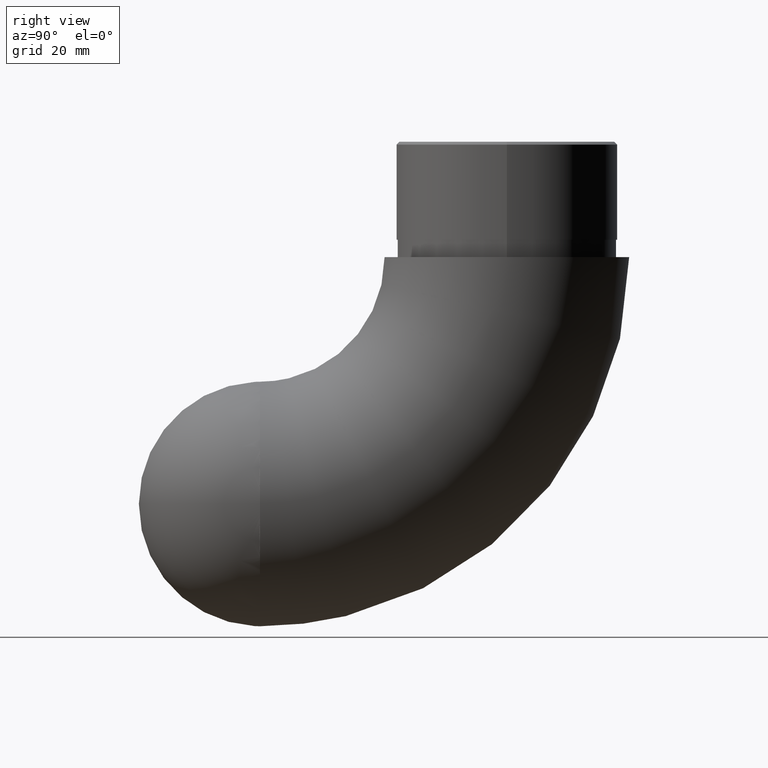
[diagram: clean part render]
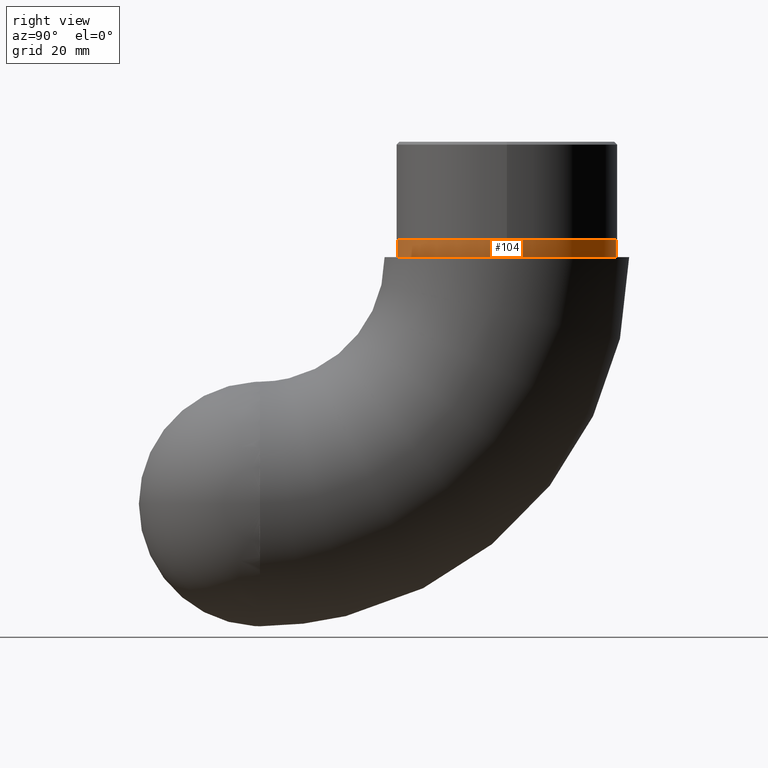
[diagram: same view with one face highlighted and labeled with its STEP entity id]
A machine part, right view. The second image highlights one B-rep face of the part: STEP entity #104.
In plain terms, the highlighted cylindrical surface (bore or boss wall) has radius 18.95 mm, axis along (-0, -0, -1).
Its self-contained STEP definition (entity closure, byte-faithful):
#104 = ADVANCED_FACE ( 'NONE', ( #1420, #2870 ), #4848, .T. ) ;
#150 = EDGE_CURVE ( 'NONE', #2090, #2090, #3730, .T. ) ;
#456 = CARTESIAN_POINT ( 'NONE',  ( 0.0000000000000000000, 42.80000000000000400, 3.000000000000000000 ) ) ;
#711 = CARTESIAN_POINT ( 'NONE',  ( 0.0000000000000000000, 42.80000000000000400, 3.000000000000000000 ) ) ;
#1003 = CIRCLE ( 'NONE', #1037, 18.95000000000000300 ) ;
#1037 = AXIS2_PLACEMENT_3D ( 'NONE', #5617, #7351, #10236 ) ;
#1186 = EDGE_LOOP ( 'NONE', ( #10025 ) ) ;
#1203 = ORIENTED_EDGE ( 'NONE', *, *, #6077, .T. ) ;
#1418 = CARTESIAN_POINT ( 'NONE',  ( 18.95000000000000300, 42.80000000000000400, 3.000000000000000000 ) ) ;
#1420 = FACE_OUTER_BOUND ( 'NONE', #1186, .T. ) ;
#1570 = EDGE_LOOP ( 'NONE', ( #1203 ) ) ;
#1858 = AXIS2_PLACEMENT_3D ( 'NONE', #711, #6081, #11617 ) ;
#2090 = VERTEX_POINT ( 'NONE', #1418 ) ;
#2870 = FACE_OUTER_BOUND ( 'NONE', #1570, .T. ) ;
#2957 = VERTEX_POINT ( 'NONE', #7066 ) ;
#3730 = CIRCLE ( 'NONE', #1858, 18.95000000000000300 ) ;
#4377 = DIRECTION ( 'NONE',  ( -1.000000000000000000, 0.0000000000000000000, 0.0000000000000000000 ) ) ;
#4848 = CYLINDRICAL_SURFACE ( 'NONE', #10040, 18.95000000000000300 ) ;
#5617 = CARTESIAN_POINT ( 'NONE',  ( 0.0000000000000000000, 42.80000000000000400, 0.0000000000000000000 ) ) ;
#6077 = EDGE_CURVE ( 'NONE', #2957, #2957, #1003, .T. ) ;
#6081 = DIRECTION ( 'NONE',  ( 0.0000000000000000000, 0.0000000000000000000, 1.000000000000000000 ) ) ;
#7066 = CARTESIAN_POINT ( 'NONE',  ( 18.95000000000000300, 42.80000000000000400, 0.0000000000000000000 ) ) ;
#7351 = DIRECTION ( 'NONE',  ( 0.0000000000000000000, 0.0000000000000000000, 1.000000000000000000 ) ) ;
#8646 = DIRECTION ( 'NONE',  ( -0.0000000000000000000, -0.0000000000000000000, -1.000000000000000000 ) ) ;
#10025 = ORIENTED_EDGE ( 'NONE', *, *, #150, .F. ) ;
#10040 = AXIS2_PLACEMENT_3D ( 'NONE', #456, #8646, #4377 ) ;
#10236 = DIRECTION ( 'NONE',  ( 1.000000000000000000, 0.0000000000000000000, 0.0000000000000000000 ) ) ;
#11617 = DIRECTION ( 'NONE',  ( 1.000000000000000000, 0.0000000000000000000, 0.0000000000000000000 ) ) ;